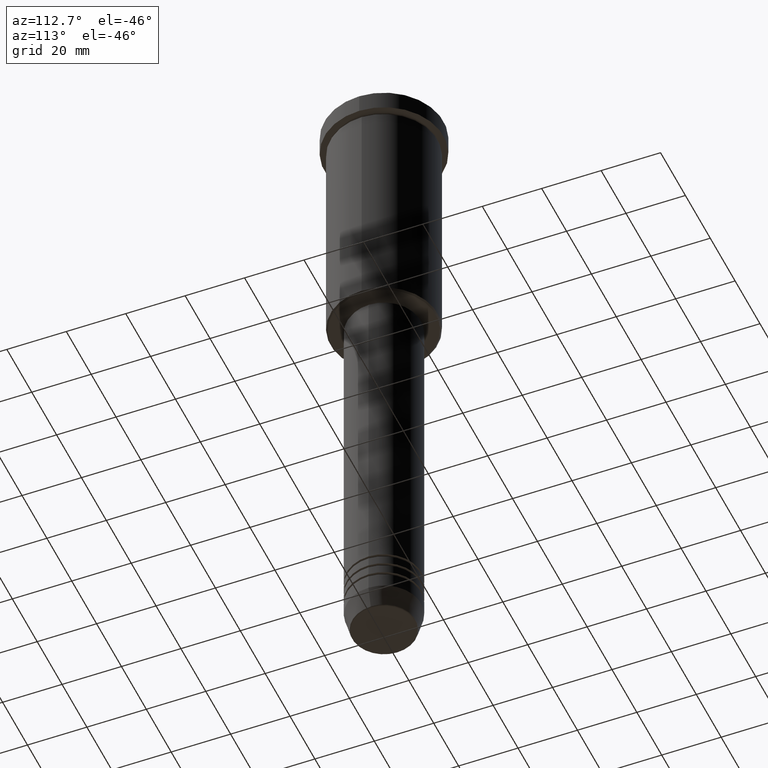
[diagram: clean part render]
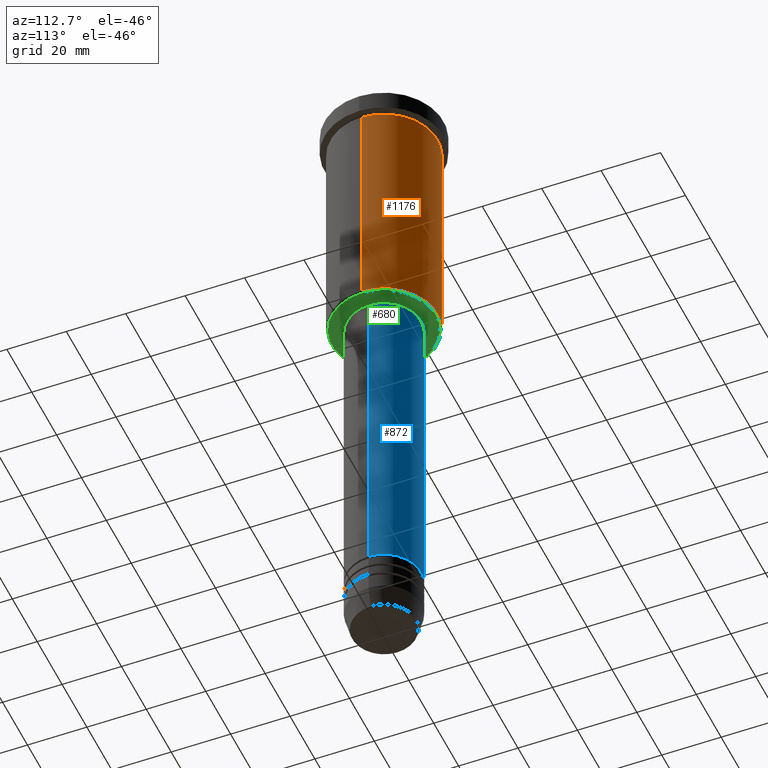
[diagram: same view with three faces highlighted in distinct colors, each labeled with its STEP entity id]
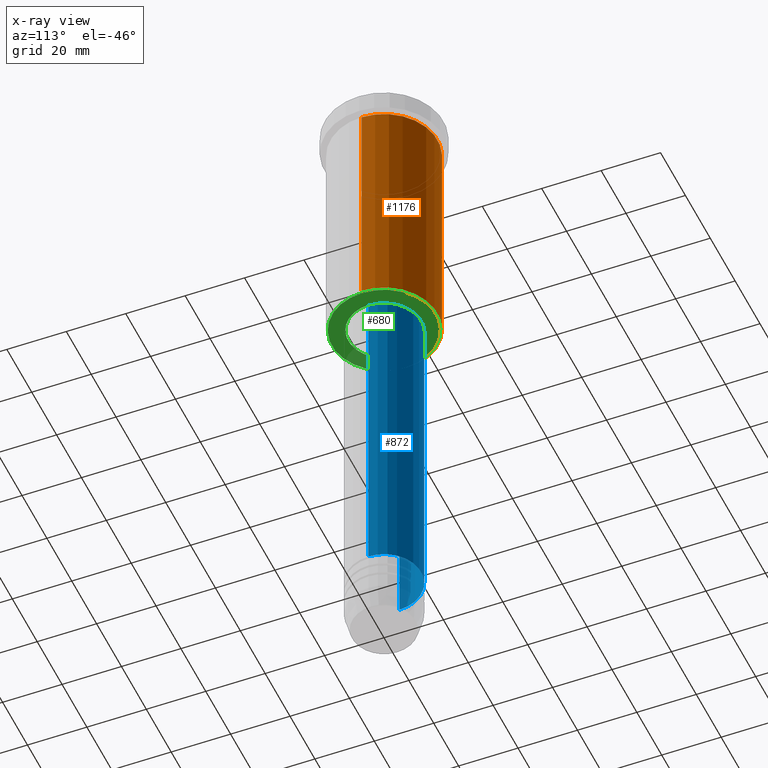
[diagram: x-ray of the same camera — body ghosted, the three highlighted faces saturated]
A machine part, auxiliary view with three faces highlighted in distinct colors.
The next image is the same camera in x-ray (body ghosted, the three faces saturated) — at least one of them is partly hidden behind the body in this view.
Their STEP definitions:

[orange] entity #1176 — the highlighted cylindrical surface (partial cylindrical patch) has radius 18 mm, axis along (-0, -0, 1).
#151 = ORIENTED_EDGE ( 'NONE', *, *, #797, .F. ) ;
#161 = DIRECTION ( 'NONE',  ( -0.000000000000000000, -0.000000000000000000, 1.000000000000000000 ) ) ;
#206 = DIRECTION ( 'NONE',  ( -1.000000000000000000, 0.000000000000000000, 0.000000000000000000 ) ) ;
#216 = EDGE_CURVE ( 'NONE', #462, #843, #411, .T. ) ;
#263 = ORIENTED_EDGE ( 'NONE', *, *, #1173, .T. ) ;
#279 = CIRCLE ( 'NONE', #327, 18.00000000000000000 ) ;
#327 = AXIS2_PLACEMENT_3D ( 'NONE', #358, #1128, #206 ) ;
#328 = LINE ( 'NONE', #1085, #432 ) ;
#358 = CARTESIAN_POINT ( 'NONE',  ( 0.000000000000000000, 0.000000000000000000, -85.49999999999995737 ) ) ;
#359 = VERTEX_POINT ( 'NONE', #495 ) ;
#393 = AXIS2_PLACEMENT_3D ( 'NONE', #693, #1151, #700 ) ;
#398 = DIRECTION ( 'NONE',  ( -0.000000000000000000, -0.000000000000000000, 1.000000000000000000 ) ) ;
#411 = CIRCLE ( 'NONE', #393, 18.00000000000000000 ) ;
#432 = VECTOR ( 'NONE', #161, 1000.000000000000000 ) ;
#462 = VERTEX_POINT ( 'NONE', #662 ) ;
#470 = CARTESIAN_POINT ( 'NONE',  ( -18.00000000000000000, 2.204364238465235428E-15, -85.49999999999995737 ) ) ;
#490 = DIRECTION ( 'NONE',  ( -0.000000000000000000, -0.000000000000000000, 1.000000000000000000 ) ) ;
#495 = CARTESIAN_POINT ( 'NONE',  ( 18.00000000000000000, 0.000000000000000000, -85.49999999999995737 ) ) ;
#511 = ORIENTED_EDGE ( 'NONE', *, *, #1039, .T. ) ;
#515 = VECTOR ( 'NONE', #490, 1000.000000000000000 ) ;
#606 = CARTESIAN_POINT ( 'NONE',  ( -18.00000000000000000, 2.204364238465235428E-15, 0.000000000000000000 ) ) ;
#662 = CARTESIAN_POINT ( 'NONE',  ( 18.00000000000000000, 0.000000000000000000, -7.999999999999996447 ) ) ;
#693 = CARTESIAN_POINT ( 'NONE',  ( 0.000000000000000000, 0.000000000000000000, -7.999999999999996447 ) ) ;
#700 = DIRECTION ( 'NONE',  ( 1.000000000000000000, 0.000000000000000000, 0.000000000000000000 ) ) ;
#707 = CARTESIAN_POINT ( 'NONE',  ( -18.00000000000000000, 2.204364238465235428E-15, -7.999999999999996447 ) ) ;
#739 = VERTEX_POINT ( 'NONE', #470 ) ;
#790 = CARTESIAN_POINT ( 'NONE',  ( 0.000000000000000000, 0.000000000000000000, 0.000000000000000000 ) ) ;
#797 = EDGE_CURVE ( 'NONE', #359, #462, #328, .T. ) ;
#843 = VERTEX_POINT ( 'NONE', #707 ) ;
#858 = LINE ( 'NONE', #606, #515 ) ;
#864 = DIRECTION ( 'NONE',  ( 1.000000000000000000, 0.000000000000000000, 0.000000000000000000 ) ) ;
#938 = AXIS2_PLACEMENT_3D ( 'NONE', #790, #398, #864 ) ;
#1005 = ORIENTED_EDGE ( 'NONE', *, *, #216, .F. ) ;
#1039 = EDGE_CURVE ( 'NONE', #359, #739, #279, .T. ) ;
#1055 = CYLINDRICAL_SURFACE ( 'NONE', #938, 18.00000000000000000 ) ;
#1085 = CARTESIAN_POINT ( 'NONE',  ( 18.00000000000000000, 0.000000000000000000, 0.000000000000000000 ) ) ;
#1128 = DIRECTION ( 'NONE',  ( -0.000000000000000000, -0.000000000000000000, 1.000000000000000000 ) ) ;
#1144 = FACE_OUTER_BOUND ( 'NONE', #1152, .T. ) ;
#1151 = DIRECTION ( 'NONE',  ( -0.000000000000000000, -0.000000000000000000, 1.000000000000000000 ) ) ;
#1152 = EDGE_LOOP ( 'NONE', ( #511, #263, #1005, #151 ) ) ;
#1173 = EDGE_CURVE ( 'NONE', #739, #843, #858, .T. ) ;
#1176 = ADVANCED_FACE ( 'NONE', ( #1144 ), #1055, .T. ) ;

[blue] entity #872 — the highlighted cylindrical surface (partial cylindrical patch) has radius 12.5 mm, axis along (-0, -0, 1).
#2 = LINE ( 'NONE', #1109, #874 ) ;
#7 = DIRECTION ( 'NONE',  ( -0.000000000000000000, -0.000000000000000000, 1.000000000000000000 ) ) ;
#22 = EDGE_LOOP ( 'NONE', ( #351, #953, #1145, #266 ) ) ;
#126 = LINE ( 'NONE', #677, #620 ) ;
#227 = CARTESIAN_POINT ( 'NONE',  ( -12.50000000000000000, 1.530808498934191521E-15, -87.00000000000002842 ) ) ;
#235 = CARTESIAN_POINT ( 'NONE',  ( 0.000000000000000000, 0.000000000000000000, -198.9999999999999716 ) ) ;
#238 = AXIS2_PLACEMENT_3D ( 'NONE', #235, #960, #607 ) ;
#241 = VERTEX_POINT ( 'NONE', #887 ) ;
#266 = ORIENTED_EDGE ( 'NONE', *, *, #426, .F. ) ;
#295 = CARTESIAN_POINT ( 'NONE',  ( -12.50000000000000000, 1.530808498934191521E-15, -198.9999999999999716 ) ) ;
#308 = CIRCLE ( 'NONE', #238, 12.50000000000000000 ) ;
#351 = ORIENTED_EDGE ( 'NONE', *, *, #696, .T. ) ;
#352 = DIRECTION ( 'NONE',  ( 1.000000000000000000, 0.000000000000000000, 0.000000000000000000 ) ) ;
#426 = EDGE_CURVE ( 'NONE', #561, #241, #126, .T. ) ;
#434 = EDGE_CURVE ( 'NONE', #241, #893, #685, .T. ) ;
#469 = AXIS2_PLACEMENT_3D ( 'NONE', #800, #713, #987 ) ;
#475 = EDGE_CURVE ( 'NONE', #1096, #893, #2, .T. ) ;
#561 = VERTEX_POINT ( 'NONE', #701 ) ;
#607 = DIRECTION ( 'NONE',  ( 1.000000000000000000, 0.000000000000000000, 0.000000000000000000 ) ) ;
#620 = VECTOR ( 'NONE', #1003, 1000.000000000000000 ) ;
#677 = CARTESIAN_POINT ( 'NONE',  ( 12.50000000000000000, 0.000000000000000000, 0.000000000000000000 ) ) ;
#685 = CIRCLE ( 'NONE', #1160, 12.50000000000000000 ) ;
#696 = EDGE_CURVE ( 'NONE', #561, #1096, #308, .T. ) ;
#701 = CARTESIAN_POINT ( 'NONE',  ( 12.50000000000000000, 0.000000000000000000, -198.9999999999999716 ) ) ;
#713 = DIRECTION ( 'NONE',  ( -0.000000000000000000, -0.000000000000000000, 1.000000000000000000 ) ) ;
#740 = DIRECTION ( 'NONE',  ( -0.000000000000000000, -0.000000000000000000, 1.000000000000000000 ) ) ;
#800 = CARTESIAN_POINT ( 'NONE',  ( 0.000000000000000000, 0.000000000000000000, 0.000000000000000000 ) ) ;
#872 = ADVANCED_FACE ( 'NONE', ( #888 ), #1164, .T. ) ;
#874 = VECTOR ( 'NONE', #740, 1000.000000000000000 ) ;
#887 = CARTESIAN_POINT ( 'NONE',  ( 12.50000000000000000, 0.000000000000000000, -87.00000000000002842 ) ) ;
#888 = FACE_OUTER_BOUND ( 'NONE', #22, .T. ) ;
#893 = VERTEX_POINT ( 'NONE', #227 ) ;
#929 = CARTESIAN_POINT ( 'NONE',  ( 0.000000000000000000, 0.000000000000000000, -87.00000000000002842 ) ) ;
#953 = ORIENTED_EDGE ( 'NONE', *, *, #475, .T. ) ;
#960 = DIRECTION ( 'NONE',  ( -0.000000000000000000, -0.000000000000000000, 1.000000000000000000 ) ) ;
#987 = DIRECTION ( 'NONE',  ( 1.000000000000000000, 0.000000000000000000, 0.000000000000000000 ) ) ;
#1003 = DIRECTION ( 'NONE',  ( -0.000000000000000000, -0.000000000000000000, 1.000000000000000000 ) ) ;
#1096 = VERTEX_POINT ( 'NONE', #295 ) ;
#1109 = CARTESIAN_POINT ( 'NONE',  ( -12.50000000000000000, 1.530808498934191521E-15, 0.000000000000000000 ) ) ;
#1145 = ORIENTED_EDGE ( 'NONE', *, *, #434, .F. ) ;
#1160 = AXIS2_PLACEMENT_3D ( 'NONE', #929, #7, #352 ) ;
#1164 = CYLINDRICAL_SURFACE ( 'NONE', #469, 12.50000000000000000 ) ;

[green] entity #680 — the highlighted planar face has unit normal (0, 0, -1).
#8 = CARTESIAN_POINT ( 'NONE',  ( 0.000000000000000000, 0.000000000000000000, -86.00000000000000000 ) ) ;
#25 = DIRECTION ( 'NONE',  ( -0.000000000000000000, -0.000000000000000000, 1.000000000000000000 ) ) ;
#29 = DIRECTION ( 'NONE',  ( -1.000000000000000000, 0.000000000000000000, 0.000000000000000000 ) ) ;
#89 = EDGE_LOOP ( 'NONE', ( #954, #722 ) ) ;
#92 = EDGE_CURVE ( 'NONE', #794, #697, #1106, .T. ) ;
#96 = DIRECTION ( 'NONE',  ( 1.000000000000000000, 0.000000000000000000, 0.000000000000000000 ) ) ;
#106 = PLANE ( 'NONE',  #164 ) ;
#114 = EDGE_CURVE ( 'NONE', #697, #794, #1066, .T. ) ;
#119 = CARTESIAN_POINT ( 'NONE',  ( 0.000000000000000000, 18.00000000000000000, -86.00000000000000000 ) ) ;
#164 = AXIS2_PLACEMENT_3D ( 'NONE', #119, #555, #1125 ) ;
#166 = VERTEX_POINT ( 'NONE', #276 ) ;
#174 = CARTESIAN_POINT ( 'NONE',  ( 0.000000000000000000, 0.000000000000000000, -86.00000000000000000 ) ) ;
#198 = AXIS2_PLACEMENT_3D ( 'NONE', #545, #637, #1002 ) ;
#276 = CARTESIAN_POINT ( 'NONE',  ( -17.49999999999996092, 2.173748068486549274E-15, -86.00000000000000000 ) ) ;
#412 = AXIS2_PLACEMENT_3D ( 'NONE', #8, #1114, #29 ) ;
#429 = EDGE_CURVE ( 'NONE', #166, #733, #789, .T. ) ;
#473 = CARTESIAN_POINT ( 'NONE',  ( 17.49999999999996092, 0.000000000000000000, -86.00000000000000000 ) ) ;
#541 = EDGE_CURVE ( 'NONE', #733, #166, #1027, .T. ) ;
#543 = CARTESIAN_POINT ( 'NONE',  ( 0.000000000000000000, 0.000000000000000000, -86.00000000000000000 ) ) ;
#545 = CARTESIAN_POINT ( 'NONE',  ( 0.000000000000000000, 0.000000000000000000, -86.00000000000000000 ) ) ;
#547 = ORIENTED_EDGE ( 'NONE', *, *, #541, .T. ) ;
#555 = DIRECTION ( 'NONE',  ( 0.000000000000000000, 0.000000000000000000, -1.000000000000000000 ) ) ;
#572 = AXIS2_PLACEMENT_3D ( 'NONE', #174, #25, #96 ) ;
#637 = DIRECTION ( 'NONE',  ( -0.000000000000000000, -0.000000000000000000, 1.000000000000000000 ) ) ;
#660 = FACE_BOUND ( 'NONE', #89, .T. ) ;
#680 = ADVANCED_FACE ( 'NONE', ( #1023, #660 ), #106, .T. ) ;
#697 = VERTEX_POINT ( 'NONE', #978 ) ;
#722 = ORIENTED_EDGE ( 'NONE', *, *, #92, .T. ) ;
#729 = DIRECTION ( 'NONE',  ( -1.000000000000000000, 0.000000000000000000, 0.000000000000000000 ) ) ;
#733 = VERTEX_POINT ( 'NONE', #473 ) ;
#789 = CIRCLE ( 'NONE', #900, 17.49999999999996092 ) ;
#794 = VERTEX_POINT ( 'NONE', #1073 ) ;
#821 = ORIENTED_EDGE ( 'NONE', *, *, #429, .T. ) ;
#900 = AXIS2_PLACEMENT_3D ( 'NONE', #543, #937, #729 ) ;
#937 = DIRECTION ( 'NONE',  ( 0.000000000000000000, 0.000000000000000000, -1.000000000000000000 ) ) ;
#954 = ORIENTED_EDGE ( 'NONE', *, *, #114, .T. ) ;
#978 = CARTESIAN_POINT ( 'NONE',  ( 12.00000000000000000, 0.000000000000000000, -86.00000000000000000 ) ) ;
#1002 = DIRECTION ( 'NONE',  ( 1.000000000000000000, 0.000000000000000000, 0.000000000000000000 ) ) ;
#1023 = FACE_OUTER_BOUND ( 'NONE', #1142, .T. ) ;
#1027 = CIRCLE ( 'NONE', #412, 17.49999999999996092 ) ;
#1066 = CIRCLE ( 'NONE', #572, 12.00000000000000000 ) ;
#1073 = CARTESIAN_POINT ( 'NONE',  ( -12.00000000000000000, 1.469576158976823947E-15, -86.00000000000000000 ) ) ;
#1106 = CIRCLE ( 'NONE', #198, 12.00000000000000000 ) ;
#1114 = DIRECTION ( 'NONE',  ( 0.000000000000000000, 0.000000000000000000, -1.000000000000000000 ) ) ;
#1125 = DIRECTION ( 'NONE',  ( -1.000000000000000000, 0.000000000000000000, -0.000000000000000000 ) ) ;
#1142 = EDGE_LOOP ( 'NONE', ( #547, #821 ) ) ;